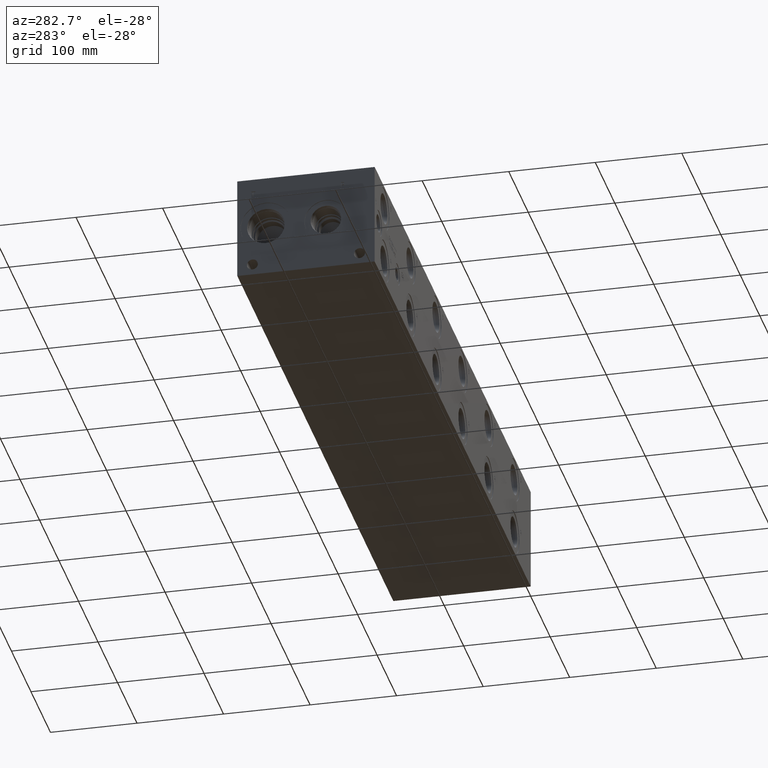
[diagram: clean part render]
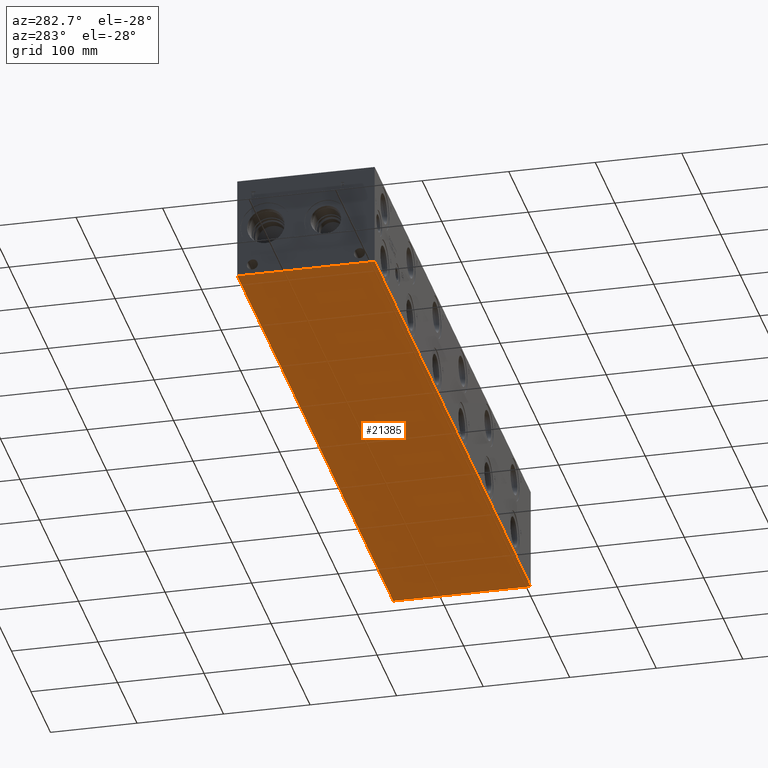
[diagram: same view with one face highlighted and labeled with its STEP entity id]
A machine part, auxiliary view. The second image highlights one B-rep face of the part: STEP entity #21385.
In plain terms, the highlighted planar face has unit normal (0, 0, 1).
Its self-contained STEP definition (entity closure, byte-faithful):
#3296=FACE_OUTER_BOUND('',#4676,.T.);
#4676=EDGE_LOOP('',(#19119,#19120,#19121,#19122));
#4710=LINE('',#28344,#6418);
#5895=LINE('',#34588,#7603);
#5954=LINE('',#34860,#7662);
#6383=LINE('',#37451,#8091);
#6418=VECTOR('',#23182,10.);
#7603=VECTOR('',#25187,10.);
#7662=VECTOR('',#25300,10.);
#8091=VECTOR('',#28263,10.);
#8115=VERTEX_POINT('',#28342);
#8116=VERTEX_POINT('',#28343);
#9229=VERTEX_POINT('',#34587);
#9287=VERTEX_POINT('',#34859);
#10216=EDGE_CURVE('',#8115,#8116,#4710,.T.);
#11871=EDGE_CURVE('',#8116,#9229,#5895,.T.);
#11954=EDGE_CURVE('',#9287,#8115,#5954,.T.);
#13161=EDGE_CURVE('',#9229,#9287,#6383,.T.);
#19119=ORIENTED_EDGE('',*,*,#10216,.F.);
#19120=ORIENTED_EDGE('',*,*,#11954,.F.);
#19121=ORIENTED_EDGE('',*,*,#13161,.F.);
#19122=ORIENTED_EDGE('',*,*,#11871,.F.);
#19627=PLANE('',#23120);
#21385=ADVANCED_FACE('',(#3296),#19627,.F.);
#23120=AXIS2_PLACEMENT_3D('',#37456,#28271,#28272);
#23182=DIRECTION('',(1.,0.,0.));
#25187=DIRECTION('',(0.,1.,0.));
#25300=DIRECTION('',(0.,-1.,0.));
#28263=DIRECTION('',(-1.,0.,0.));
#28271=DIRECTION('center_axis',(0.,0.,1.));
#28272=DIRECTION('ref_axis',(1.,0.,0.));
#28342=CARTESIAN_POINT('',(0.,0.,0.));
#28343=CARTESIAN_POINT('',(800.1,0.,0.));
#28344=CARTESIAN_POINT('',(0.,0.,0.));
#34587=CARTESIAN_POINT('',(800.1,158.75,0.));
#34588=CARTESIAN_POINT('',(800.1,0.,0.));
#34859=CARTESIAN_POINT('',(0.,158.75,0.));
#34860=CARTESIAN_POINT('',(0.,158.75,0.));
#37451=CARTESIAN_POINT('',(800.1,158.75,0.));
#37456=CARTESIAN_POINT('Origin',(400.05,79.375,0.));